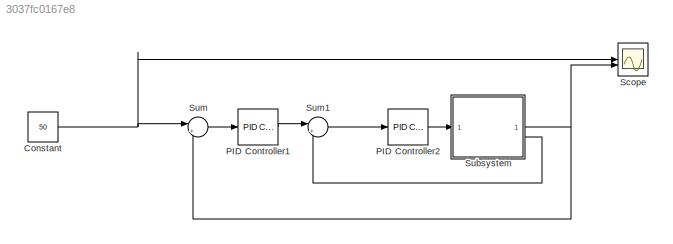
MODEL slx_3037fc0167e8
KIND model
CONFIG AbsTol = 1e-3
CONFIG EnableMultiTasking = on
CONFIG FixedStep = 0.005
CONFIG MaxStep = auto
CONFIG MinStep = auto
CONFIG RelTol = 1e-3
CONFIG SampleTimeConstraint = Unconstrained
CONFIG SolverName = FixedStepAuto
CONFIG StartTime = 0.0
CONFIG StopTime = inf
WORKSPACE source: mxarray member
WORKSPACE Armature_Inductance = 0.001
WORKSPACE Armature_Inductance_NEW = 1.12039737344e-06
WORKSPACE Armature_Inductance_n = 0.00994620821305
WORKSPACE Coulomb_Friction_Force = 1
WORKSPACE Coulomb_Friction_Force_N = 0.0521332457902
WORKSPACE Coulomb_Friction_Force_NEW = 1.64621921379
WORKSPACE Damping_coefficient = 1
WORKSPACE Damping_coefficient_N = 38.8460996806
WORKSPACE Damping_coefficient_NEW = 1.71815570054
WORKSPACE Et = 0.108547063034
WORKSPACE Friction_Force = 1
WORKSPACE Friction_Force_N = 1.46192424023
WORKSPACE Friction_Force_NEW = 2.69201475613
WORKSPACE Friction_coeffient = 0.1
WORKSPACE Friction_coeffient_N = 0.973219921945
WORKSPACE Friction_coeffient_NEW = 354.482161898
WORKSPACE R = 0.962194376059
WORKSPACE Rated_speed = 195.095180091
WORKSPACE Rotor_damping = 1
WORKSPACE Stall_torque = 0.129665131132
WORKSPACE Test_Signals: Simulink.SimulationData.Dataset (value not decoded)
WORKSPACE Var = 0
WORKSPACE Var1 = 5
WORKSPACE inertia = 1
WORKSPACE inertia_NEW = 0.00233565531733
WORKSPACE inertia_n = 0.000234701107851
WORKSPACE mechanical_power = 0.00219878017021
WORKSPACE mechanical_power_NEW = 0.60626924632
WORKSPACE xInitial = 1
BLOCK [Constant] Constant
  Value = 50
BLOCK [Reference] PID Controller1  REF=slpidlib/PID Controller
  LibrarySourceBlock = simulink/Continuous/PID Controller
  SourceBlock = slpidlib/PID Controller
  SourceType = PID 1dof
BLOCK [Reference] PID Controller2  REF=slpidlib/PID Controller
  LibrarySourceBlock = simulink/Continuous/PID Controller
  SourceBlock = slpidlib/PID Controller
  SourceType = PID 1dof
BLOCK [Scope] Scope
  Floating = off
  NumInputPorts = 2
  ScopeSpecificationString = Simulink.scopes.TimeScopeBlockCfg('CurrentConfiguration', extmgr.ConfigurationSet(extmgr.Configuration('Core','General UI',true),extmgr.Configuration('Core','Source UI',true),extmgr.Configuration('Sources','WiredSimulink',true,'DataLoggingVariableName','ScopeData1'),extmgr.Configuration('Visuals','Time Domain',true,'SerializedDisplays',{struct('MinYLimReal','10.32796','MaxYLimReal','51.99463','YLa...<+1486ch>
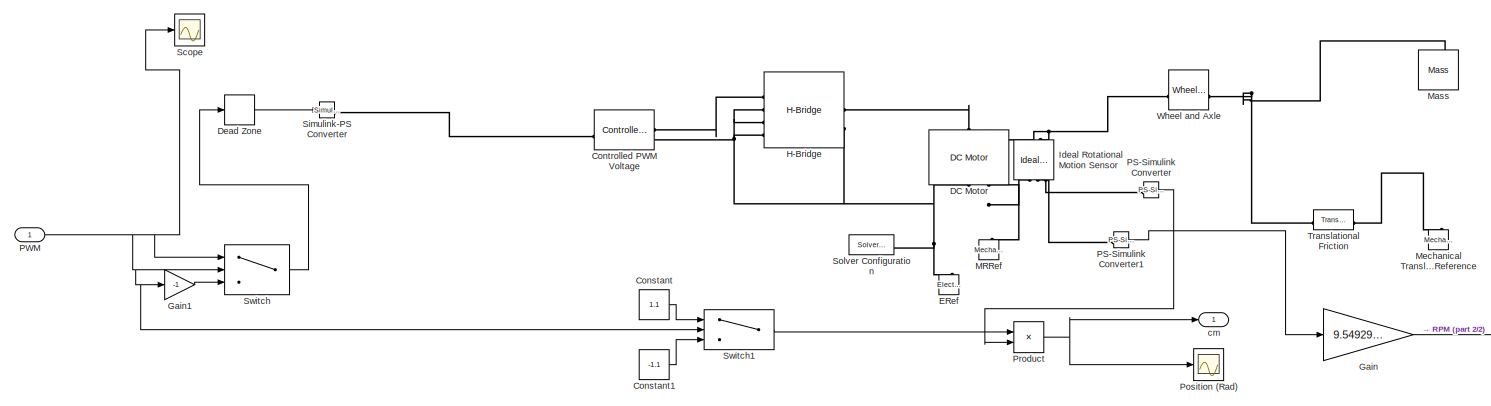
[diagram: Subsystem - part 1/2, most of the canvas]
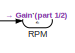
[diagram: Subsystem - part 2/2, bottom right region]
BLOCK [SubSystem] Subsystem
BLOCK [Constant] Subsystem/Constant
  Value = 1.1
BLOCK [Constant] Subsystem/Constant1
  Value = -1.1
BLOCK [Reference] Subsystem/Controlled PWM Voltage  REF=ee_lib/Integrated Circuits/Controlled PWM
Voltage
  SourceBlock = ee_lib/Integrated Circuits/Controlled PWM\nVoltage
  SourceType = Controlled PWM\nVoltage
BLOCK [Reference] Subsystem/DC Motor  REF=ee_lib/Electromechanical/Brushed Motors/DC Motor
  NameLocation = left
  SourceBlock = ee_lib/Electromechanical/Brushed Motors/DC Motor
  SourceType = DC Motor
BLOCK [DeadZone] Subsystem/Dead Zone
  LowerValue = 0
  UpperValue = 111
BLOCK [Reference] Subsystem/ERef  REF=fl_lib/Electrical/Electrical Elements/Electrical Reference
  NameLocation = left
  SourceBlock = fl_lib/Electrical/Electrical Elements/Electrical Reference
  SourceType = Electrical Reference
BLOCK [Gain] Subsystem/Gain
  Gain = 9.5492968
BLOCK [Gain] Subsystem/Gain1
  Gain = -1
BLOCK [Reference] Subsystem/H-Bridge  REF=ee_lib/Semiconductors &
Converters/Converters/H-Bridge
  SourceBlock = ee_lib/Semiconductors &\nConverters/Converters/H-Bridge
  SourceType = H-Bridge
BLOCK [Reference] Subsystem/Ideal Rotational Motion Sensor  REF=fl_lib/Mechanical/Mechanical Sensors/Ideal Rotational
Motion Sensor
  NameLocation = right
  SourceBlock = fl_lib/Mechanical/Mechanical Sensors/Ideal Rotational\nMotion Sensor
  SourceType = Ideal Rotational\nMotion Sensor
BLOCK [Reference] Subsystem/MRRef  REF=fl_lib/Mechanical/Rotational Elements/Mechanical
Rotational Reference
  NameLocation = right
  SourceBlock = fl_lib/Mechanical/Rotational Elements/Mechanical\nRotational Reference
  SourceType = Mechanical\nRotational Reference
BLOCK [Reference] Subsystem/Mass  REF=fl_lib/Mechanical/Translational
Elements/Mass
  NameLocation = right
  SourceBlock = fl_lib/Mechanical/Translational\nElements/Mass
  SourceType = Mass
BLOCK [Reference] Subsystem/Mechanical Translational Reference  REF=fl_lib/Mechanical/Translational
Elements/Mechanical
Translational
Reference
  NameLocation = right
  SourceBlock = fl_lib/Mechanical/Translational\nElements/Mechanical\nTranslational\nReference
  SourceType = Mechanical\nTranslational\nReference
BLOCK [Reference] Subsystem/PS-Simulink Converter  REF=nesl_utility/PS-Simulink
Converter
  SourceBlock = nesl_utility/PS-Simulink\nConverter
  SourceType = PS-Simulink\nConverter
BLOCK [Reference] Subsystem/PS-Simulink Converter1  REF=nesl_utility/PS-Simulink
Converter
  SourceBlock = nesl_utility/PS-Simulink\nConverter
  SourceType = PS-Simulink\nConverter
BLOCK [Inport] Subsystem/PWM
BLOCK [Scope] Subsystem/Position (Rad)
  Floating = off
  NumInputPorts = 1
  ScopeSpecificationString = Simulink.scopes.TimeScopeBlockCfg('CurrentConfiguration', extmgr.ConfigurationSet(extmgr.Configuration('Core','General UI',true),extmgr.Configuration('Core','Source UI',true),extmgr.Configuration('Sources','WiredSimulink',true,'DataLoggingVariableName','ScopeData1'),extmgr.Configuration('Visuals','Time Domain',true,'SerializedDisplays',{struct('MinYLimReal','-6.25','MaxYLimReal','56.25','YLabelRea...<+1352ch>
BLOCK [Product] Subsystem/Product
BLOCK [Outport] Subsystem/RPM
  Port = 2
BLOCK [Scope] Subsystem/Scope
  Floating = off
  NumInputPorts = 1
  ScopeSpecificationString = Simulink.scopes.TimeScopeBlockCfg('CurrentConfiguration', extmgr.ConfigurationSet(extmgr.Configuration('Core','General UI',true),extmgr.Configuration('Core','Source UI',true),extmgr.Configuration('Sources','WiredSimulink',true,'DataLoggingVariableName','ScopeData1'),extmgr.Configuration('Visuals','Time Domain',true,'SerializedDisplays',{struct('MinYLimReal','-275.42261','MaxYLimReal','-71.19654','...<+1403ch>
BLOCK [Reference] Subsystem/Simulink-PS Converter  REF=nesl_utility/Simulink-PS
Converter
  SourceBlock = nesl_utility/Simulink-PS\nConverter
  SourceType = Simulink-PS\nConverter
BLOCK [Reference] Subsystem/Solver Configuration  REF=nesl_utility/Solver
Configuration
  SourceBlock = nesl_utility/Solver\nConfiguration
  SourceType = Solver\nConfiguration
BLOCK [Switch] Subsystem/Switch
  InputSameDT = off
  SaturateOnIntegerOverflow = off
BLOCK [Switch] Subsystem/Switch1
  InputSameDT = off
  SaturateOnIntegerOverflow = off
BLOCK [Reference] Subsystem/Translational Friction  REF=fl_lib/Mechanical/Translational
Elements/Translational
Friction
  SourceBlock = fl_lib/Mechanical/Translational\nElements/Translational\nFriction
  SourceType = Translational\nFriction
BLOCK [Reference] Subsystem/Wheel and Axle  REF=fl_lib/Mechanical/Mechanisms/Wheel and Axle
  SourceBlock = fl_lib/Mechanical/Mechanisms/Wheel and Axle
  SourceType = Wheel and Axle
BLOCK [Outport] Subsystem/cm
BLOCK [Sum] Sum
  Inputs = |+-
BLOCK [Sum] Sum1
  Inputs = |+-
NET Constant:1 -> Scope:1, Sum:1
LINE PID Controller1:1 -> Sum1:1
LINE PID Controller2:1 -> Subsystem:1
LINE Subsystem/Constant1:1 -> Subsystem/Switch1:3
LINE Subsystem/Constant:1 -> Subsystem/Switch1:1
LINE Subsystem/Dead Zone:1 -> Subsystem/Simulink-PS Converter:1
LINE Subsystem/Gain1:1 -> Subsystem/Switch:3
LINE Subsystem/Gain:1 -> Subsystem/RPM:1
LINE Subsystem/PS-Simulink Converter1:1 -> Subsystem/Gain:1
LINE Subsystem/PS-Simulink Converter:1 -> Subsystem/Product:2
NET Subsystem/PWM:1 -> Subsystem/Gain1:1, Subsystem/Scope:1, Subsystem/Switch1:2, Subsystem/Switch:1, Subsystem/Switch:2
NET Subsystem/Product:1 -> Subsystem/Position (Rad):1, Subsystem/cm:1
LINE Subsystem/Switch1:1 -> Subsystem/Product:1
LINE Subsystem/Switch:1 -> Subsystem/Dead Zone:1
NET Subsystem:1 -> Scope:2, Sum:2
LINE Subsystem:2 -> Sum1:2
LINE Sum1:1 -> PID Controller2:1
LINE Sum:1 -> PID Controller1:1
PLINE Subsystem/Controlled PWM Voltage:LConn1 -- Subsystem/Simulink-PS Converter:RConn1
PLINE Subsystem/Controlled PWM Voltage:RConn1 -- Subsystem/H-Bridge:LConn1
PNET net1: Subsystem/Controlled PWM Voltage:RConn2 -- Subsystem/DC Motor:RConn1 -- Subsystem/ERef:LConn1 -- Subsystem/H-Bridge:LConn2 -- Subsystem/H-Bridge:LConn3 -- Subsystem/H-Bridge:LConn4 -- Subsystem/H-Bridge:RConn2 -- Subsystem/Solver Configuration:RConn1
PLINE Subsystem/DC Motor:LConn1 -- Subsystem/H-Bridge:RConn1
PNET net2: Subsystem/DC Motor:LConn2 -- Subsystem/Ideal Rotational Motion Sensor:LConn1 -- Subsystem/Wheel and Axle:LConn1
PNET net3: Subsystem/DC Motor:RConn2 -- Subsystem/Ideal Rotational Motion Sensor:RConn1 -- Subsystem/MRRef:LConn1
PLINE Subsystem/Ideal Rotational Motion Sensor:RConn2 -- Subsystem/PS-Simulink Converter1:LConn1
PLINE Subsystem/Ideal Rotational Motion Sensor:RConn3 -- Subsystem/PS-Simulink Converter:LConn1
PNET net4: Subsystem/Mass:LConn1 -- Subsystem/Translational Friction:LConn1 -- Subsystem/Wheel and Axle:RConn1
PLINE Subsystem/Mechanical Translational Reference:LConn1 -- Subsystem/Translational Friction:RConn1
note: NET lines group one-source signal fan-out (src -> all destinations, sorted); 1:1 wires keep LINE; PNET lines group multi-terminal physical nets as a canonical sorted terminal list (undirected conserving connections); 2-terminal nets keep the pairwise PLINE form
